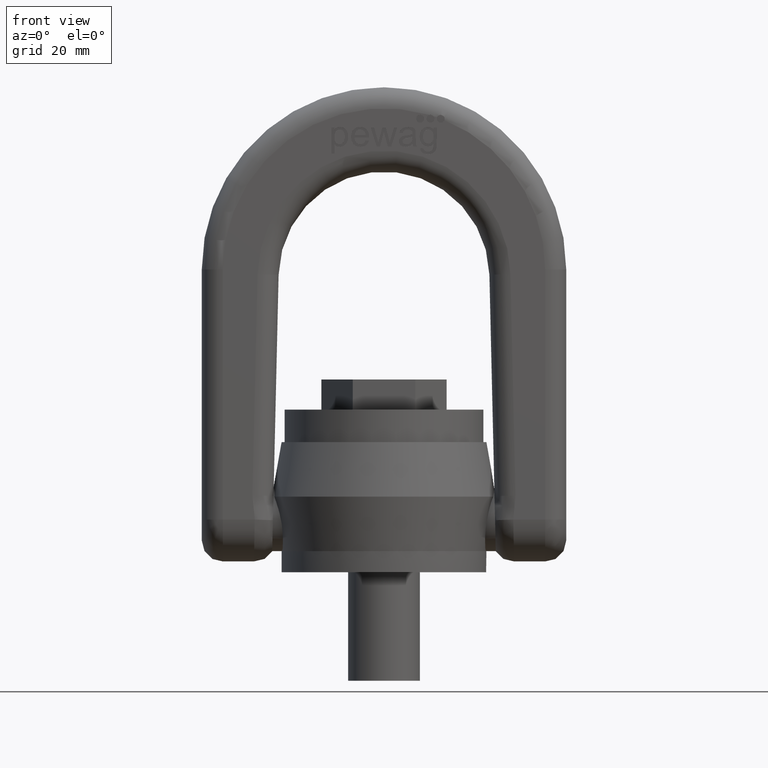
[diagram: clean part render]
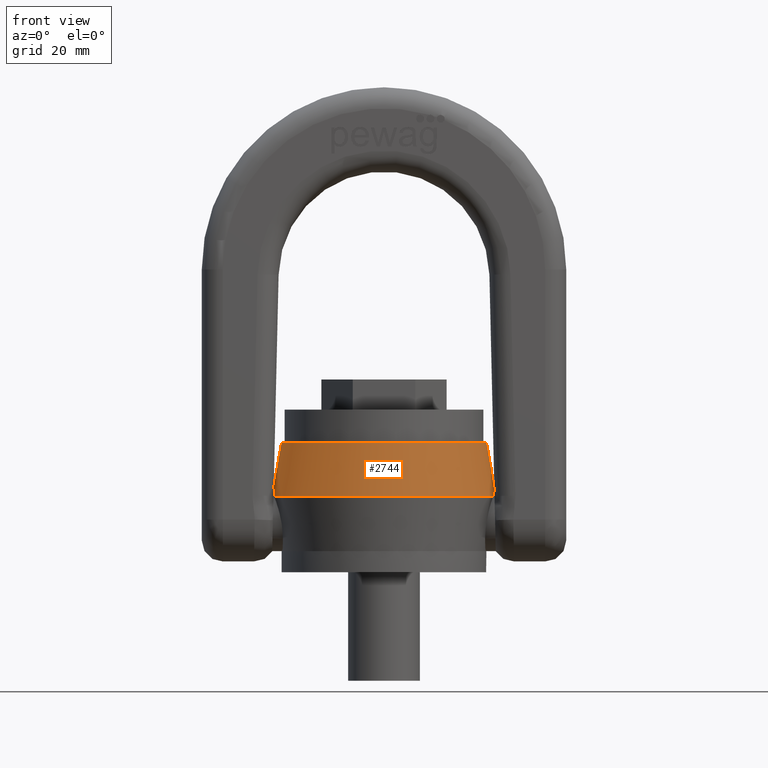
[diagram: same view with one face highlighted and labeled with its STEP entity id]
A machine part, front view. The second image highlights one B-rep face of the part: STEP entity #2744.
In plain terms, the highlighted conical surface has half-angle 10 deg.
Its self-contained STEP definition (entity closure, byte-faithful):
#2410=CONICAL_SURFACE('',#5613,37.1915183508232,10.);
#2744=ADVANCED_FACE('',(#3009,#3010),#2410,.T.);
#3009=FACE_BOUND('',#3072,.T.);
#3010=FACE_BOUND('',#3073,.T.);
#3072=EDGE_LOOP('',(#3348));
#3073=EDGE_LOOP('',(#3349));
#3348=ORIENTED_EDGE('',*,*,#4948,.T.);
#3349=ORIENTED_EDGE('',*,*,#4947,.F.);
#4547=VERTEX_POINT('',#6608);
#4548=VERTEX_POINT('',#6611);
#4947=EDGE_CURVE('',#4547,#4547,#5549,.T.);
#4948=EDGE_CURVE('',#4548,#4548,#5550,.T.);
#5549=CIRCLE('',#5610,37.1915183508232);
#5550=CIRCLE('',#5612,34.);
#5610=AXIS2_PLACEMENT_3D('',#6607,#5826,#5827);
#5612=AXIS2_PLACEMENT_3D('',#6610,#5830,#5831);
#5613=AXIS2_PLACEMENT_3D('',#6612,#5832,#5833);
#5826=DIRECTION('',(0.,0.,-1.));
#5827=DIRECTION('',(-1.,0.,0.));
#5830=DIRECTION('',(0.,0.,-1.));
#5831=DIRECTION('',(-1.,0.,0.));
#5832=DIRECTION('',(0.,0.,-1.));
#5833=DIRECTION('',(-1.,0.,3.24978581925142E-17));
#6607=CARTESIAN_POINT('',(0.,0.,25.1));
#6608=CARTESIAN_POINT('',(-37.1915183508232,0.,25.1));
#6610=CARTESIAN_POINT('',(0.,0.,43.2));
#6611=CARTESIAN_POINT('',(-34.,0.,43.2));
#6612=CARTESIAN_POINT('',(0.,0.,25.1));